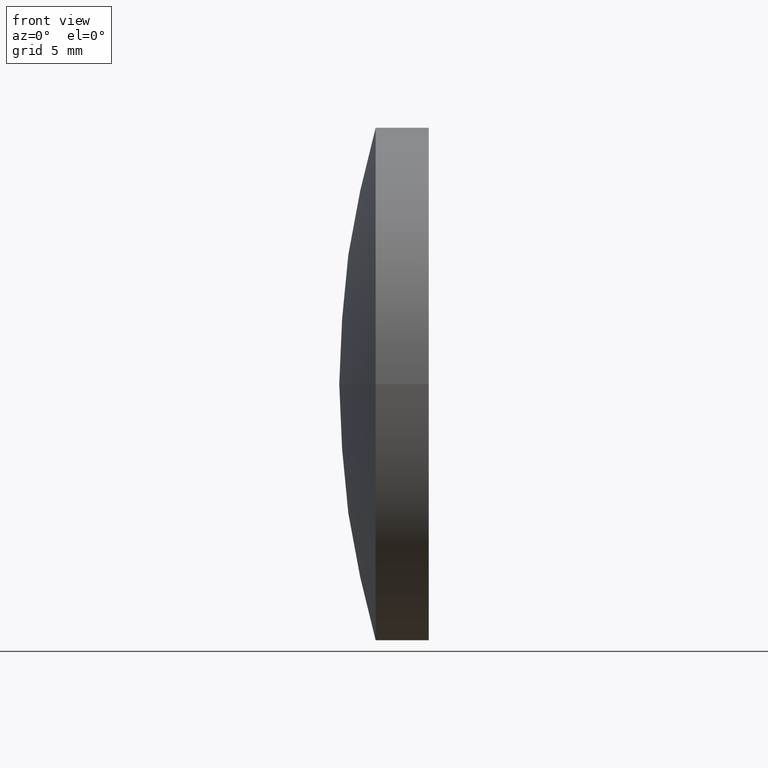
[diagram: clean part render]
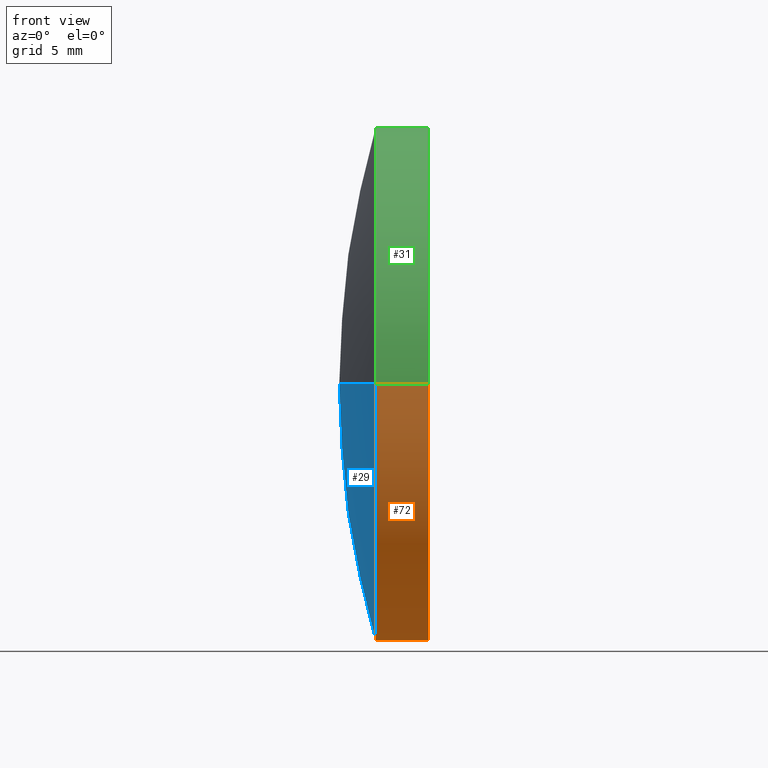
[diagram: same view with three faces highlighted in distinct colors, each labeled with its STEP entity id]
A machine part, front view with three faces highlighted in distinct colors.
Their STEP definitions:

[orange] entity #72 — the highlighted cylindrical surface (partial cylindrical patch) has radius 12.5 mm, axis along (-1, -0, -0).
#3 = CIRCLE ( 'NONE', #121, 12.50000000000001800 ) ;
#7 = DIRECTION ( 'NONE',  ( -1.000000000000000000, -6.937607244762875000E-016, -0.0000000000000000000 ) ) ;
#10 = FACE_OUTER_BOUND ( 'NONE', #80, .T. ) ;
#14 = CARTESIAN_POINT ( 'NONE',  ( 126.9650110756947500, 65.21684047094034000, 0.0000000000000000000 ) ) ;
#17 = CIRCLE ( 'NONE', #140, 12.50000000000004600 ) ;
#18 = VERTEX_POINT ( 'NONE', #141 ) ;
#22 = CARTESIAN_POINT ( 'NONE',  ( 124.3831525340183500, 77.71684047094034000, 0.0000000000000000000 ) ) ;
#32 = CARTESIAN_POINT ( 'NONE',  ( 124.3831525340183800, 65.21684047094032600, 0.0000000000000000000 ) ) ;
#33 = EDGE_CURVE ( 'NONE', #173, #157, #44, .T. ) ;
#39 = EDGE_CURVE ( 'NONE', #149, #157, #3, .T. ) ;
#40 = DIRECTION ( 'NONE',  ( -1.000000000000000000, -6.937607244762875000E-016, -0.0000000000000000000 ) ) ;
#44 = LINE ( 'NONE', #185, #158 ) ;
#54 = DIRECTION ( 'NONE',  ( 1.110223024625155000E-015, -1.000000000000000000, 0.0000000000000000000 ) ) ;
#65 = DIRECTION ( 'NONE',  ( 0.0000000000000000000, -1.000000000000000000, 0.0000000000000000000 ) ) ;
#66 = DIRECTION ( 'NONE',  ( -1.000000000000000000, -6.937607244762875000E-016, -0.0000000000000000000 ) ) ;
#72 = ADVANCED_FACE ( 'NONE', ( #10 ), #123, .T. ) ;
#73 = CARTESIAN_POINT ( 'NONE',  ( 124.3831525340183800, 52.71684047094031200, -1.530808498934192100E-015 ) ) ;
#79 = CARTESIAN_POINT ( 'NONE',  ( 115.9444912979631700, 65.21684047094032600, 0.0000000000000000000 ) ) ;
#80 = EDGE_LOOP ( 'NONE', ( #113, #87, #143, #134 ) ) ;
#85 = VECTOR ( 'NONE', #66, 1000.000000000000000 ) ;
#87 = ORIENTED_EDGE ( 'NONE', *, *, #179, .T. ) ;
#106 = LINE ( 'NONE', #151, #85 ) ;
#109 = DIRECTION ( 'NONE',  ( -1.000000000000000000, -6.937607244762875000E-016, -0.0000000000000000000 ) ) ;
#113 = ORIENTED_EDGE ( 'NONE', *, *, #150, .F. ) ;
#121 = AXIS2_PLACEMENT_3D ( 'NONE', #32, #7, #54 ) ;
#123 = CYLINDRICAL_SURFACE ( 'NONE', #135, 12.50000000000003200 ) ;
#127 = CARTESIAN_POINT ( 'NONE',  ( 126.9650110756947500, 52.71684047094015600, -1.530808498934200400E-015 ) ) ;
#134 = ORIENTED_EDGE ( 'NONE', *, *, #39, .F. ) ;
#135 = AXIS2_PLACEMENT_3D ( 'NONE', #79, #40, #144 ) ;
#140 = AXIS2_PLACEMENT_3D ( 'NONE', #14, #109, #65 ) ;
#141 = CARTESIAN_POINT ( 'NONE',  ( 126.9650110756947500, 77.71684047094041100, 0.0000000000000000000 ) ) ;
#143 = ORIENTED_EDGE ( 'NONE', *, *, #33, .T. ) ;
#144 = DIRECTION ( 'NONE',  ( 1.110223024625153800E-015, -1.000000000000000000, 0.0000000000000000000 ) ) ;
#149 = VERTEX_POINT ( 'NONE', #22 ) ;
#150 = EDGE_CURVE ( 'NONE', #18, #149, #106, .T. ) ;
#151 = CARTESIAN_POINT ( 'NONE',  ( 115.9444912979631500, 77.71684047094035500, 1.530808498934195500E-015 ) ) ;
#157 = VERTEX_POINT ( 'NONE', #73 ) ;
#158 = VECTOR ( 'NONE', #183, 1000.000000000000000 ) ;
#173 = VERTEX_POINT ( 'NONE', #127 ) ;
#179 = EDGE_CURVE ( 'NONE', #18, #173, #17, .T. ) ;
#183 = DIRECTION ( 'NONE',  ( -1.000000000000000000, -6.937607244762875000E-016, -0.0000000000000000000 ) ) ;
#185 = CARTESIAN_POINT ( 'NONE',  ( 115.9444912979631800, 52.71684047094029800, 0.0000000000000000000 ) ) ;

[blue] entity #29 — the highlighted spherical surface has radius 45 mm.
#1 = CARTESIAN_POINT ( 'NONE',  ( 122.6121936984948200, 65.21684047094031200, 0.0000000000000000000 ) ) ;
#2 = EDGE_LOOP ( 'NONE', ( #57, #99, #107 ) ) ;
#3 = CIRCLE ( 'NONE', #121, 12.50000000000001800 ) ;
#7 = DIRECTION ( 'NONE',  ( -1.000000000000000000, -6.937607244762875000E-016, -0.0000000000000000000 ) ) ;
#12 = DIRECTION ( 'NONE',  ( -6.167905692361979600E-016, 1.000000000000000000, 0.0000000000000000000 ) ) ;
#21 = EDGE_CURVE ( 'NONE', #157, #139, #26, .T. ) ;
#22 = CARTESIAN_POINT ( 'NONE',  ( 124.3831525340183500, 77.71684047094034000, 0.0000000000000000000 ) ) ;
#25 = DIRECTION ( 'NONE',  ( 0.0000000000000000000, 1.000000000000000000, 1.224646799147353200E-016 ) ) ;
#26 = CIRCLE ( 'NONE', #28, 45.00000000000001400 ) ;
#28 = AXIS2_PLACEMENT_3D ( 'NONE', #42, #60, #25 ) ;
#29 = ADVANCED_FACE ( 'NONE', ( #94 ), #167, .T. ) ;
#30 = CARTESIAN_POINT ( 'NONE',  ( 167.6121936984948500, 65.21684047094034000, 0.0000000000000000000 ) ) ;
#32 = CARTESIAN_POINT ( 'NONE',  ( 124.3831525340183800, 65.21684047094032600, 0.0000000000000000000 ) ) ;
#39 = EDGE_CURVE ( 'NONE', #149, #157, #3, .T. ) ;
#42 = CARTESIAN_POINT ( 'NONE',  ( 167.6121936984948500, 65.21684047094034000, 0.0000000000000000000 ) ) ;
#46 = CIRCLE ( 'NONE', #58, 45.00000000000001400 ) ;
#54 = DIRECTION ( 'NONE',  ( 1.110223024625155000E-015, -1.000000000000000000, 0.0000000000000000000 ) ) ;
#57 = ORIENTED_EDGE ( 'NONE', *, *, #39, .T. ) ;
#58 = AXIS2_PLACEMENT_3D ( 'NONE', #30, #147, #160 ) ;
#60 = DIRECTION ( 'NONE',  ( -8.496118506040342700E-032, 1.224646799147353200E-016, -1.000000000000000000 ) ) ;
#73 = CARTESIAN_POINT ( 'NONE',  ( 124.3831525340183800, 52.71684047094031200, -1.530808498934192100E-015 ) ) ;
#94 = FACE_OUTER_BOUND ( 'NONE', #2, .T. ) ;
#96 = DIRECTION ( 'NONE',  ( -0.0000000000000000000, 0.0000000000000000000, -1.000000000000000000 ) ) ;
#99 = ORIENTED_EDGE ( 'NONE', *, *, #21, .T. ) ;
#107 = ORIENTED_EDGE ( 'NONE', *, *, #166, .F. ) ;
#121 = AXIS2_PLACEMENT_3D ( 'NONE', #32, #7, #54 ) ;
#139 = VERTEX_POINT ( 'NONE', #1 ) ;
#147 = DIRECTION ( 'NONE',  ( -0.0000000000000000000, 0.0000000000000000000, 1.000000000000000000 ) ) ;
#149 = VERTEX_POINT ( 'NONE', #22 ) ;
#157 = VERTEX_POINT ( 'NONE', #73 ) ;
#160 = DIRECTION ( 'NONE',  ( 1.000000000000000000, 0.0000000000000000000, 0.0000000000000000000 ) ) ;
#166 = EDGE_CURVE ( 'NONE', #149, #139, #46, .T. ) ;
#167 = SPHERICAL_SURFACE ( 'NONE', #181, 45.00000000000001400 ) ;
#172 = CARTESIAN_POINT ( 'NONE',  ( 167.6121936984948500, 65.21684047094034000, 0.0000000000000000000 ) ) ;
#181 = AXIS2_PLACEMENT_3D ( 'NONE', #172, #96, #12 ) ;

[green] entity #31 — the highlighted cylindrical surface (partial cylindrical patch) has radius 12.5 mm, axis along (-1, -0, -0).
#6 = EDGE_CURVE ( 'NONE', #157, #149, #13, .T. ) ;
#13 = CIRCLE ( 'NONE', #19, 12.50000000000001800 ) ;
#18 = VERTEX_POINT ( 'NONE', #141 ) ;
#19 = AXIS2_PLACEMENT_3D ( 'NONE', #52, #168, #78 ) ;
#22 = CARTESIAN_POINT ( 'NONE',  ( 124.3831525340183500, 77.71684047094034000, 0.0000000000000000000 ) ) ;
#31 = ADVANCED_FACE ( 'NONE', ( #50 ), #119, .T. ) ;
#33 = EDGE_CURVE ( 'NONE', #173, #157, #44, .T. ) ;
#37 = CARTESIAN_POINT ( 'NONE',  ( 126.9650110756947500, 65.21684047094034000, 0.0000000000000000000 ) ) ;
#44 = LINE ( 'NONE', #185, #158 ) ;
#50 = FACE_OUTER_BOUND ( 'NONE', #61, .T. ) ;
#52 = CARTESIAN_POINT ( 'NONE',  ( 124.3831525340183800, 65.21684047094032600, 0.0000000000000000000 ) ) ;
#56 = ORIENTED_EDGE ( 'NONE', *, *, #91, .T. ) ;
#61 = EDGE_LOOP ( 'NONE', ( #56, #176, #90, #177 ) ) ;
#66 = DIRECTION ( 'NONE',  ( -1.000000000000000000, -6.937607244762875000E-016, -0.0000000000000000000 ) ) ;
#69 = DIRECTION ( 'NONE',  ( -1.000000000000000000, -6.937607244762875000E-016, -0.0000000000000000000 ) ) ;
#73 = CARTESIAN_POINT ( 'NONE',  ( 124.3831525340183800, 52.71684047094031200, -1.530808498934192100E-015 ) ) ;
#78 = DIRECTION ( 'NONE',  ( 1.110223024625155000E-015, -1.000000000000000000, 0.0000000000000000000 ) ) ;
#85 = VECTOR ( 'NONE', #66, 1000.000000000000000 ) ;
#90 = ORIENTED_EDGE ( 'NONE', *, *, #6, .F. ) ;
#91 = EDGE_CURVE ( 'NONE', #173, #18, #170, .T. ) ;
#98 = CARTESIAN_POINT ( 'NONE',  ( 115.9444912979631700, 65.21684047094032600, 0.0000000000000000000 ) ) ;
#104 = AXIS2_PLACEMENT_3D ( 'NONE', #98, #148, #110 ) ;
#106 = LINE ( 'NONE', #151, #85 ) ;
#110 = DIRECTION ( 'NONE',  ( 1.110223024625153800E-015, -1.000000000000000000, 0.0000000000000000000 ) ) ;
#119 = CYLINDRICAL_SURFACE ( 'NONE', #104, 12.50000000000003200 ) ;
#127 = CARTESIAN_POINT ( 'NONE',  ( 126.9650110756947500, 52.71684047094015600, -1.530808498934200400E-015 ) ) ;
#141 = CARTESIAN_POINT ( 'NONE',  ( 126.9650110756947500, 77.71684047094041100, 0.0000000000000000000 ) ) ;
#146 = AXIS2_PLACEMENT_3D ( 'NONE', #37, #69, #155 ) ;
#148 = DIRECTION ( 'NONE',  ( -1.000000000000000000, -6.937607244762875000E-016, -0.0000000000000000000 ) ) ;
#149 = VERTEX_POINT ( 'NONE', #22 ) ;
#150 = EDGE_CURVE ( 'NONE', #18, #149, #106, .T. ) ;
#151 = CARTESIAN_POINT ( 'NONE',  ( 115.9444912979631500, 77.71684047094035500, 1.530808498934195500E-015 ) ) ;
#155 = DIRECTION ( 'NONE',  ( 0.0000000000000000000, -1.000000000000000000, 0.0000000000000000000 ) ) ;
#157 = VERTEX_POINT ( 'NONE', #73 ) ;
#158 = VECTOR ( 'NONE', #183, 1000.000000000000000 ) ;
#168 = DIRECTION ( 'NONE',  ( -1.000000000000000000, -6.937607244762875000E-016, -0.0000000000000000000 ) ) ;
#170 = CIRCLE ( 'NONE', #146, 12.50000000000004600 ) ;
#173 = VERTEX_POINT ( 'NONE', #127 ) ;
#176 = ORIENTED_EDGE ( 'NONE', *, *, #150, .T. ) ;
#177 = ORIENTED_EDGE ( 'NONE', *, *, #33, .F. ) ;
#183 = DIRECTION ( 'NONE',  ( -1.000000000000000000, -6.937607244762875000E-016, -0.0000000000000000000 ) ) ;
#185 = CARTESIAN_POINT ( 'NONE',  ( 115.9444912979631800, 52.71684047094029800, 0.0000000000000000000 ) ) ;